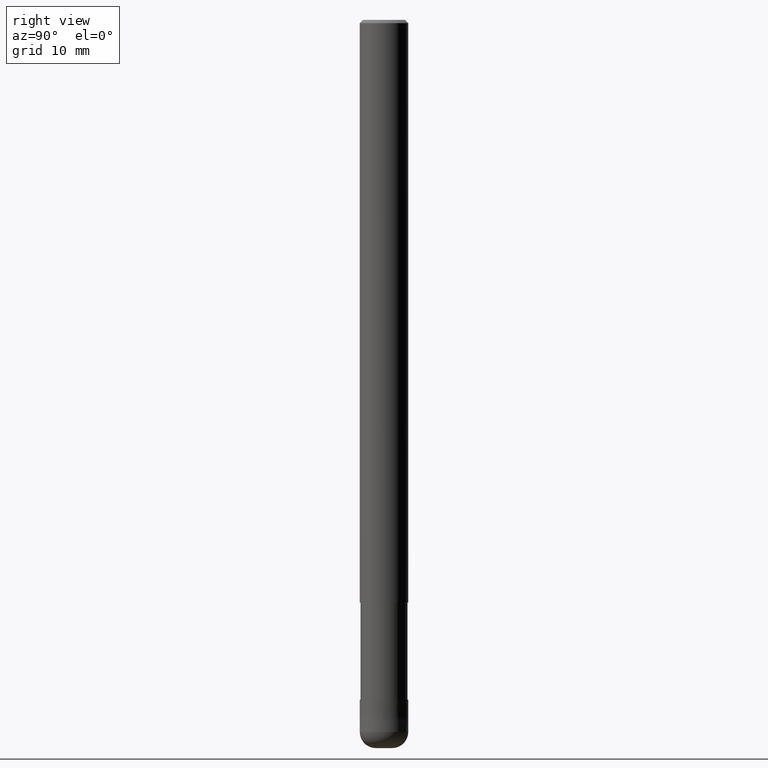
[diagram: clean part render]
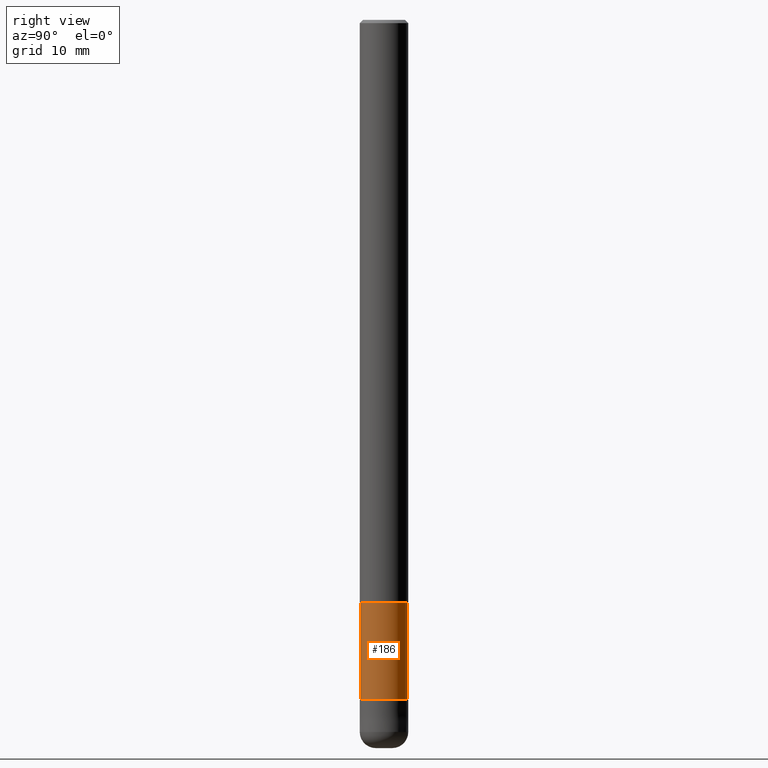
[diagram: same view with one face highlighted and labeled with its STEP entity id]
A machine part, right view. The second image highlights one B-rep face of the part: STEP entity #186.
In plain terms, the highlighted cylindrical surface (edge-blend (fillet) strip) has radius 2.9099 mm, axis along (-0, -0, 1).
Its self-contained STEP definition (entity closure, byte-faithful):
#98=EDGE_CURVE('',#206,#120,#236,.T.);
#102=EDGE_CURVE('',#142,#206,#240,.T.);
#108=VERTEX_POINT('',#246);
#120=VERTEX_POINT('',#258);
#142=VERTEX_POINT('',#283);
#150=EDGE_CURVE('',#108,#142,#291,.T.);
#186=ADVANCED_FACE('',(#333),#334,.T.);
#200=EDGE_CURVE('',#108,#120,#351,.T.);
#206=VERTEX_POINT('',#359);
#236=LINE('',#383,#384);
#240=CIRCLE('',#390,2.90995);
#246=CARTESIAN_POINT('',(0.0,2.90995,-72.0));
#258=CARTESIAN_POINT('',(3.56354325930543E-016,-2.90995,-72.0));
#283=CARTESIAN_POINT('',(0.0,2.90995,-84.0));
#291=LINE('',#453,#454);
#333=FACE_OUTER_BOUND('',#504,.T.);
#334=CYLINDRICAL_SURFACE('',#505,2.90995);
#351=CIRCLE('',#527,2.90995);
#359=CARTESIAN_POINT('',(3.56354325930543E-016,-2.90995,-84.0));
#383=CARTESIAN_POINT('',(3.56354325930543E-016,-2.90995,-78.0));
#384=VECTOR('',#549,1.0);
#390=AXIS2_PLACEMENT_3D('',#553,#554,#555);
#453=CARTESIAN_POINT('',(-3.56354325930543E-016,2.90995,-78.0));
#454=VECTOR('',#600,1.0);
#504=EDGE_LOOP('',(#656,#657,#658,#659));
#505=AXIS2_PLACEMENT_3D('',#660,#661,#662);
#527=AXIS2_PLACEMENT_3D('',#694,#695,#696);
#549=DIRECTION('',(-0.0,-0.0,1.0));
#553=CARTESIAN_POINT('',(0.0,0.0,-84.0));
#554=DIRECTION('',(0.0,0.0,-1.0));
#555=DIRECTION('',(0.0,1.0,0.0));
#600=DIRECTION('',(0.0,0.0,-1.0));
#656=ORIENTED_EDGE('',*,*,#150,.F.);
#657=ORIENTED_EDGE('',*,*,#200,.T.);
#658=ORIENTED_EDGE('',*,*,#98,.F.);
#659=ORIENTED_EDGE('',*,*,#102,.F.);
#660=CARTESIAN_POINT('',(0.0,0.0,-78.0));
#661=DIRECTION('',(-0.0,-0.0,1.0));
#662=DIRECTION('',(0.0,1.0,0.0));
#694=CARTESIAN_POINT('',(0.0,0.0,-72.0));
#695=DIRECTION('',(0.0,0.0,-1.0));
#696=DIRECTION('',(0.0,1.0,0.0));